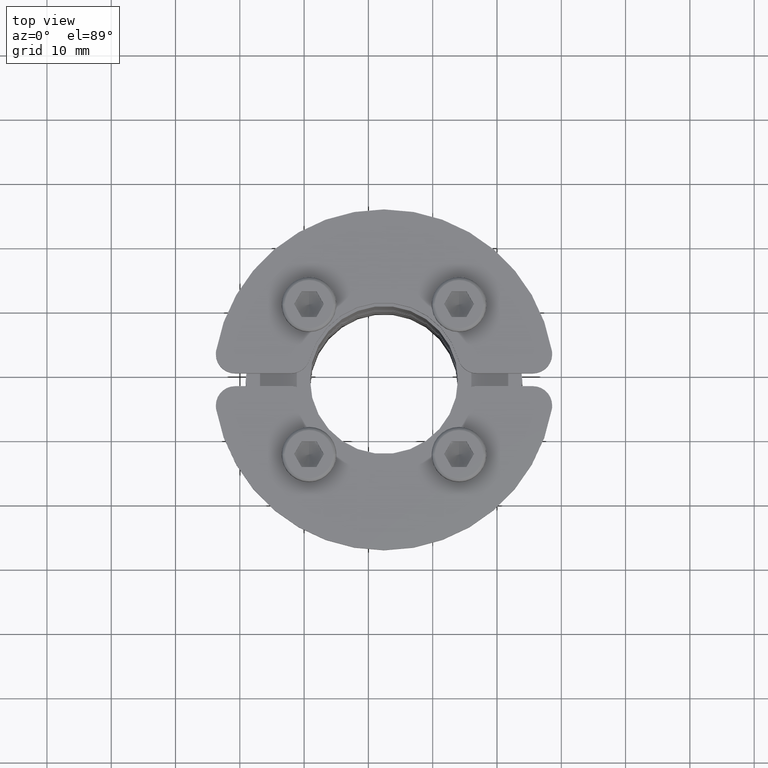
[diagram: clean part render]
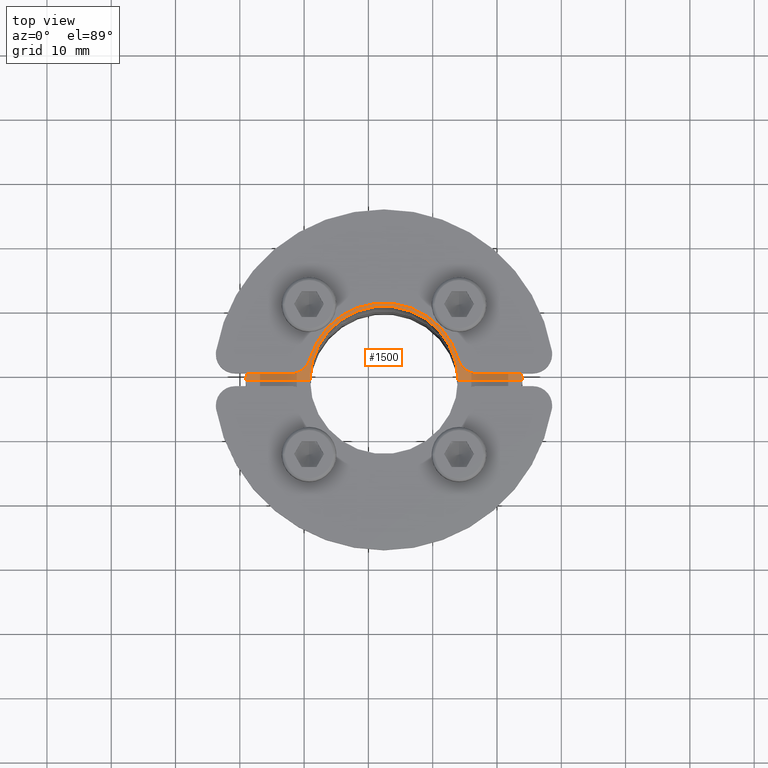
[diagram: same view with one face highlighted and labeled with its STEP entity id]
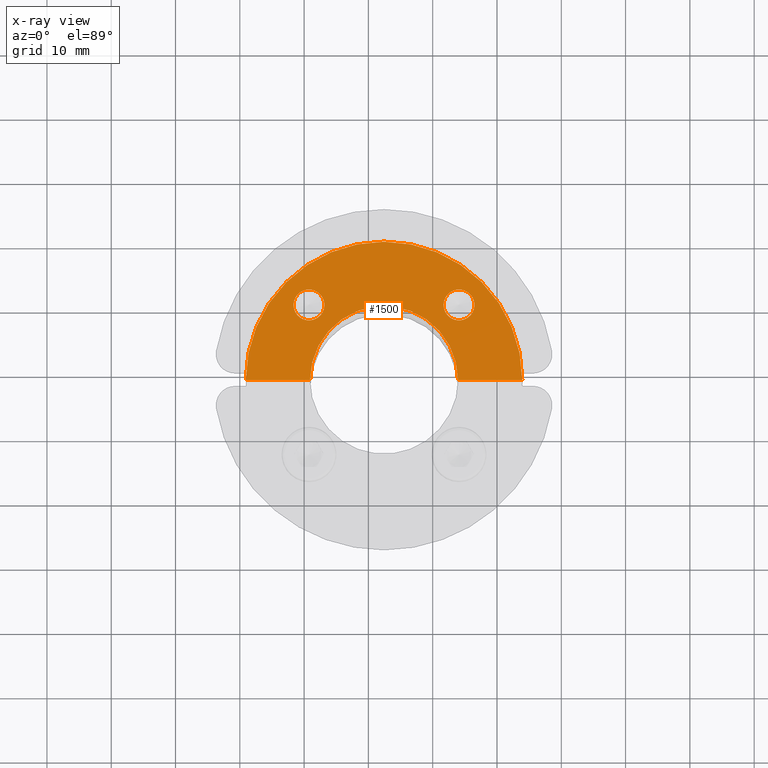
[diagram: x-ray of the same camera — body ghosted, the highlighted face saturated]
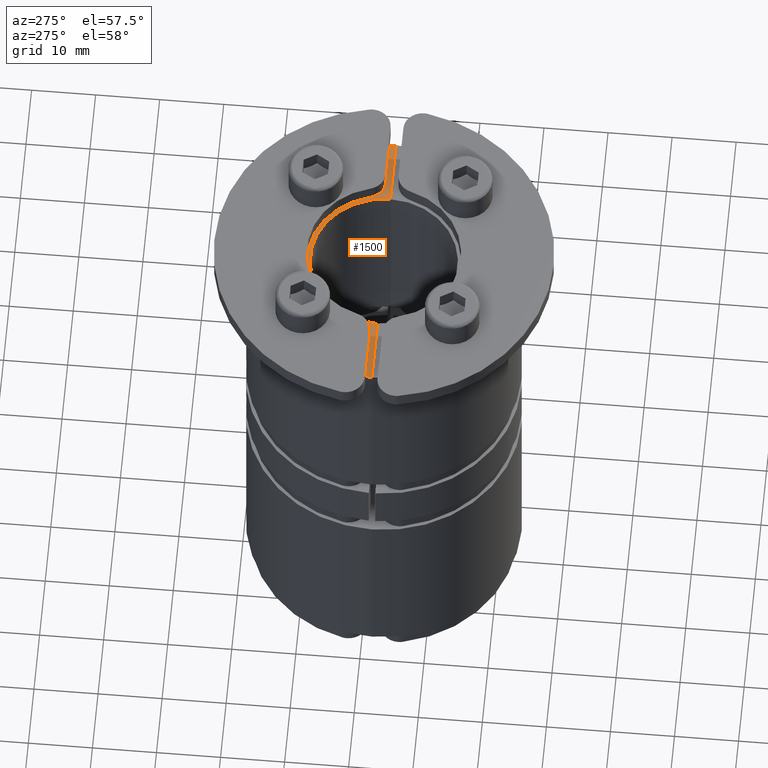
[diagram: same view with one face highlighted and labeled with its STEP entity id]
A machine part, top view. The second image highlights one B-rep face of the part: STEP entity #1500.
The next image is the same camera in x-ray: the body ghosted, the highlighted face saturated — about 0% of this face is hidden behind the body in this view.
A second angle (auxiliary view) of the same face is appended — the face is thin or edge-on in the first view.
In plain terms, the highlighted planar face has unit normal (0, 0, 1).
Its self-contained STEP definition (entity closure, byte-faithful):
#1228=CARTESIAN_POINT('',(-11.079162293059602,3.752475688609646,15.500000000000000));
#1229=VERTEX_POINT('',#1228);
#1245=CARTESIAN_POINT('',(-15.879162293059602,3.752475688609646,15.500000000000000));
#1246=VERTEX_POINT('',#1245);
#1253=CARTESIAN_POINT('',(-13.479162293059602,3.752475688609646,15.500000000000000));
#1254=DIRECTION('',(0.0,0.0,-1.0));
#1255=DIRECTION('',(1.0,0.0,0.0));
#1256=AXIS2_PLACEMENT_3D('',#1253,#1254,#1255);
#1257=CIRCLE('',#1256,2.400000000000000);
#1258=EDGE_CURVE('',#1229,#1246,#1257,.T.);
#1270=CARTESIAN_POINT('',(12.255361486096474,3.752475688609647,15.500000000000000));
#1271=VERTEX_POINT('',#1270);
#1287=CARTESIAN_POINT('',(7.455361486096473,3.752475688609647,15.500000000000000));
#1288=VERTEX_POINT('',#1287);
#1295=CARTESIAN_POINT('',(9.855361486096474,3.752475688609647,15.500000000000000));
#1296=DIRECTION('',(0.0,0.0,-1.0));
#1297=DIRECTION('',(1.0,0.0,0.0));
#1298=AXIS2_PLACEMENT_3D('',#1295,#1296,#1297);
#1299=CIRCLE('',#1298,2.400000000000000);
#1300=EDGE_CURVE('',#1271,#1288,#1299,.T.);
#1311=CARTESIAN_POINT('',(9.855361486096474,3.752475688609647,15.500000000000000));
#1312=DIRECTION('',(0.0,0.0,-1.0));
#1313=DIRECTION('',(1.0,0.0,0.0));
#1314=AXIS2_PLACEMENT_3D('',#1311,#1312,#1313);
#1315=CIRCLE('',#1314,2.400000000000000);
#1316=EDGE_CURVE('',#1288,#1271,#1315,.T.);
#1335=CARTESIAN_POINT('',(-13.479162293059602,3.752475688609646,15.500000000000000));
#1336=DIRECTION('',(0.0,0.0,-1.0));
#1337=DIRECTION('',(1.0,0.0,0.0));
#1338=AXIS2_PLACEMENT_3D('',#1335,#1336,#1337);
#1339=CIRCLE('',#1338,2.400000000000000);
#1340=EDGE_CURVE('',#1246,#1229,#1339,.T.);
#1358=CARTESIAN_POINT('',(-13.311900403481559,-7.914786200968386,15.500000000000000));
#1359=VERTEX_POINT('',#1358);
#1360=CARTESIAN_POINT('',(-23.311900403481559,-7.914786200968386,15.500000000000000));
#1361=VERTEX_POINT('',#1360);
#1362=CARTESIAN_POINT('',(-13.311900403481559,-7.914786200968386,15.500000000000000));
#1363=DIRECTION('',(-1.0,0.0,0.0));
#1364=VECTOR('',#1363,10.0);
#1365=LINE('',#1362,#1364);
#1366=EDGE_CURVE('',#1359,#1361,#1365,.T.);
#1398=CARTESIAN_POINT('',(19.688099596518441,-7.914786200968386,15.500000000000000));
#1399=VERTEX_POINT('',#1398);
#1400=CARTESIAN_POINT('',(-1.811900403481559,-7.914786200968386,15.500000000000000));
#1401=DIRECTION('',(0.0,0.0,-1.0));
#1402=DIRECTION('',(1.0,0.0,0.0));
#1403=AXIS2_PLACEMENT_3D('',#1400,#1401,#1402);
#1404=CIRCLE('',#1403,21.500000000000000);
#1405=EDGE_CURVE('',#1361,#1399,#1404,.T.);
#1431=CARTESIAN_POINT('',(9.688099596518441,-7.914786200968386,15.500000000000000));
#1432=VERTEX_POINT('',#1431);
#1433=CARTESIAN_POINT('',(19.688099596518441,-7.914786200968386,15.500000000000000));
#1434=DIRECTION('',(-1.0,0.0,0.0));
#1435=VECTOR('',#1434,10.0);
#1436=LINE('',#1433,#1435);
#1437=EDGE_CURVE('',#1399,#1432,#1436,.T.);
#1462=CARTESIAN_POINT('',(-1.811900403481559,-7.914786200968386,15.500000000000000));
#1463=DIRECTION('',(0.0,0.0,1.0));
#1464=DIRECTION('',(1.0,0.0,0.0));
#1465=AXIS2_PLACEMENT_3D('',#1462,#1463,#1464);
#1466=CIRCLE('',#1465,11.500000000000000);
#1467=EDGE_CURVE('',#1432,#1359,#1466,.T.);
#1481=CARTESIAN_POINT('',(0.0,-1.196648311079755,15.500000000000000));
#1482=DIRECTION('',(0.0,0.0,1.0));
#1483=DIRECTION('',(1.0,0.0,0.0));
#1484=AXIS2_PLACEMENT_3D('',#1481,#1482,#1483);
#1485=PLANE('',#1484);
#1486=ORIENTED_EDGE('',*,*,#1366,.F.);
#1487=ORIENTED_EDGE('',*,*,#1467,.F.);
#1488=ORIENTED_EDGE('',*,*,#1437,.F.);
#1489=ORIENTED_EDGE('',*,*,#1405,.F.);
#1490=EDGE_LOOP('',(#1486,#1487,#1488,#1489));
#1491=FACE_OUTER_BOUND('',#1490,.T.);
#1492=ORIENTED_EDGE('',*,*,#1300,.T.);
#1493=ORIENTED_EDGE('',*,*,#1316,.T.);
#1494=EDGE_LOOP('',(#1492,#1493));
#1495=FACE_BOUND('',#1494,.T.);
#1496=ORIENTED_EDGE('',*,*,#1258,.T.);
#1497=ORIENTED_EDGE('',*,*,#1340,.T.);
#1498=EDGE_LOOP('',(#1496,#1497));
#1499=FACE_BOUND('',#1498,.T.);
#1500=ADVANCED_FACE('',(#1491,#1495,#1499),#1485,.T.);